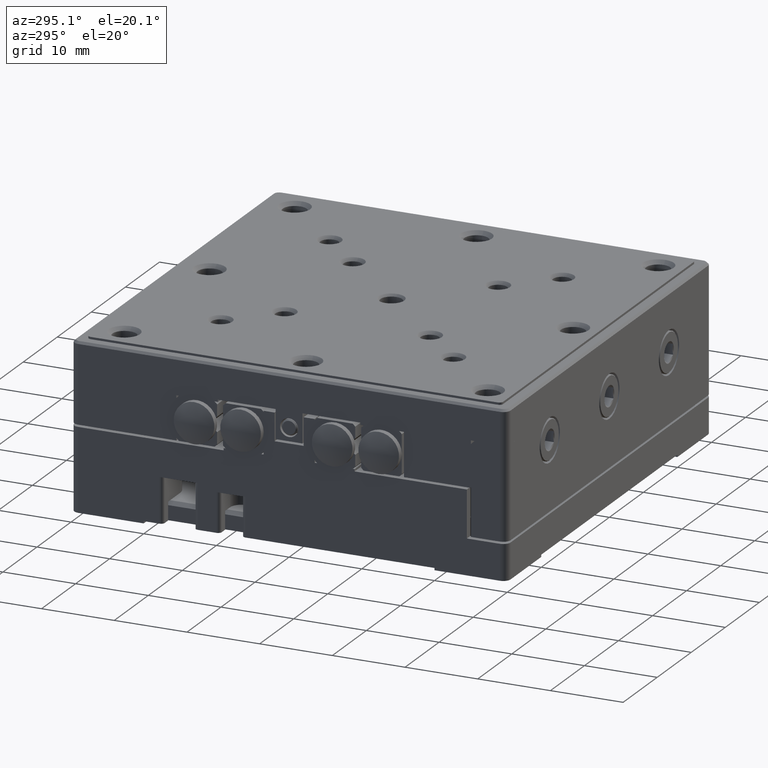
[diagram: clean part render]
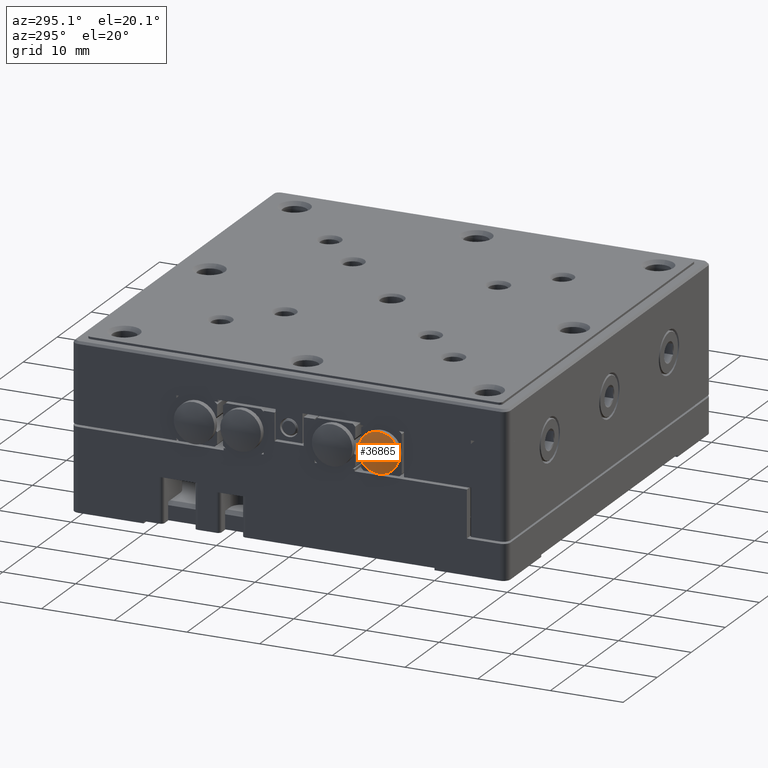
[diagram: same view with one face highlighted and labeled with its STEP entity id]
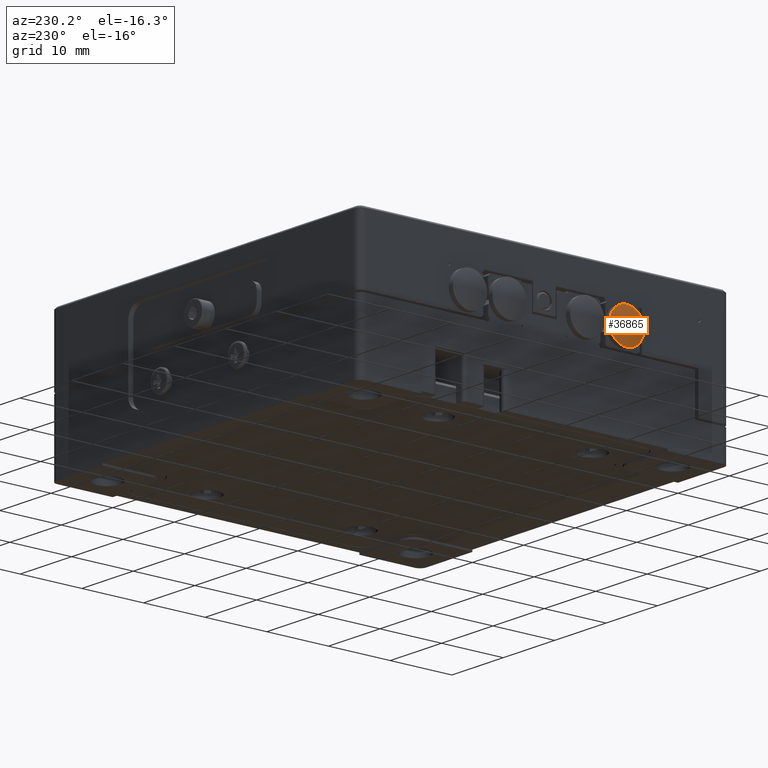
[diagram: same view with one face highlighted and labeled with its STEP entity id]
A machine part, auxiliary view. The second image highlights one B-rep face of the part: STEP entity #36865.
A second angle (auxiliary view) of the same face is appended — the face is thin or edge-on in the first view.
In plain terms, the highlighted face is a freeform B-spline surface patch.
Its self-contained STEP definition (entity closure, byte-faithful):
#4920 = CARTESIAN_POINT ( 'NONE',  ( -30.15969803399559268, -9.859344119590527811, 0.8064305902837402007 ) ) ;
#5900 = CARTESIAN_POINT ( 'NONE',  ( -32.02975765772237793, -13.73828747999186284, 2.236510901513505623 ) ) ;
#12287 = FACE_OUTER_BOUND ( 'NONE', #93633, .T. ) ;
#12763 = CARTESIAN_POINT ( 'NONE',  ( -32.02709004309325280, -13.73828747999186284, 4.379740570941269340 ) ) ;
#14502 =( BOUNDED_SURFACE ( )  B_SPLINE_SURFACE ( 3, 3, ( 
 ( #4920, #44105, #88756, #34805 ),
 ( #58329, #87289, #20126, #19652 ),
 ( #50005, #5900, #12763, #42656 ),
 ( #28419, #27943, #43151, #20607 ) ),
 .UNSPECIFIED., .F., .F., .F. ) 
 B_SPLINE_SURFACE_WITH_KNOTS ( ( 4, 4 ),
 ( 4, 4 ),
 ( 0.000000000000000000, 1.000000000000000000 ),
 ( 0.000000000000000000, 1.000000000000000000 ),
 .UNSPECIFIED. ) 
 GEOMETRIC_REPRESENTATION_ITEM ( )  RATIONAL_B_SPLINE_SURFACE ( (
 ( 1.000000000000000000, 0.9207362562936910466, 0.9207362562936910466, 1.000000000000000000),
 ( 0.9201911022256590300, 0.8472533105380184448, 0.8472533105380184448, 0.9201911022256590300),
 ( 0.9201911022256590300, 0.8472533105380184448, 0.8472533105380184448, 0.9201911022256590300),
 ( 1.000000000000000000, 0.9207362562936910466, 0.9207362562936910466, 1.000000000000000000) ) ) 
 REPRESENTATION_ITEM ( '' )  SURFACE ( )  );
#14909 = AXIS2_PLACEMENT_3D ( 'NONE', #91464, #24301, #54221 ) ;
#19652 = CARTESIAN_POINT ( 'NONE',  ( -31.01322084582780647, -11.67592499741904888, 6.267997773655952898 ) ) ;
#20126 = CARTESIAN_POINT ( 'NONE',  ( -32.02953139739849320, -11.67592499741904888, 4.380144430743110995 ) ) ;
#20607 = CARTESIAN_POINT ( 'NONE',  ( -30.14778572180818372, -15.55264693767309403, 5.802097786486430486 ) ) ;
#22640 = ORIENTED_EDGE ( 'NONE', *, *, #68240, .F. ) ;
#24301 = DIRECTION ( 'NONE',  ( 1.000000000000000000, -0.000000000000000000, -0.000000000000000000 ) ) ;
#27943 = CARTESIAN_POINT ( 'NONE',  ( -31.00681113392170829, -15.55264693767309225, 2.403116238713128627 ) ) ;
#28419 = CARTESIAN_POINT ( 'NONE',  ( -30.15399988577695822, -15.55264693767309403, 0.8094798711569544114 ) ) ;
#34805 = CARTESIAN_POINT ( 'NONE',  ( -30.15347626168383854, -9.859344119590527811, 5.805161242523140253 ) ) ;
#36865 = ADVANCED_FACE ( 'NONE', ( #12287 ), #14502, .T. ) ;
#42656 = CARTESIAN_POINT ( 'NONE',  ( -31.01115948420343926, -13.73828747999186106, 6.266888056326840761 ) ) ;
#43151 = CARTESIAN_POINT ( 'NONE',  ( -31.00456142563072248, -15.55264693767309225, 4.210589291284715152 ) ) ;
#44105 = CARTESIAN_POINT ( 'NONE',  ( -31.01355342589060271, -9.859344119590526034, 2.402018134559254836 ) ) ;
#50005 = CARTESIAN_POINT ( 'NONE',  ( -31.01852799272400318, -13.73828747999186106, 0.3468402697073868501 ) ) ;
#54221 = DIRECTION ( 'NONE',  ( 0.000000000000000000, 0.000000000000000000, -1.000000000000000000 ) ) ;
#58329 = CARTESIAN_POINT ( 'NONE',  ( -31.02059211042189446, -11.67592499741904888, 0.3457356872404626080 ) ) ;
#60254 = CIRCLE ( 'NONE', #14909, 2.799999999999999822 ) ;
#66230 = VERTEX_POINT ( 'NONE', #95170 ) ;
#68240 = EDGE_CURVE ( 'NONE', #66230, #66230, #60254, .T. ) ;
#87289 = CARTESIAN_POINT ( 'NONE',  ( -32.03220000980648763, -11.67592499741904888, 2.236113120316673086 ) ) ;
#88756 = CARTESIAN_POINT ( 'NONE',  ( -31.01130096315793239, -9.859344119590526034, 4.211704175873326683 ) ) ;
#91464 = CARTESIAN_POINT ( 'NONE',  ( -30.80659966456869725, -12.69999999999999929, 3.299999999999999822 ) ) ;
#93633 = EDGE_LOOP ( 'NONE', ( #22640 ) ) ;
#95170 = CARTESIAN_POINT ( 'NONE',  ( -30.80659966456869725, -12.69999999999999929, 0.5000000000000000000 ) ) ;